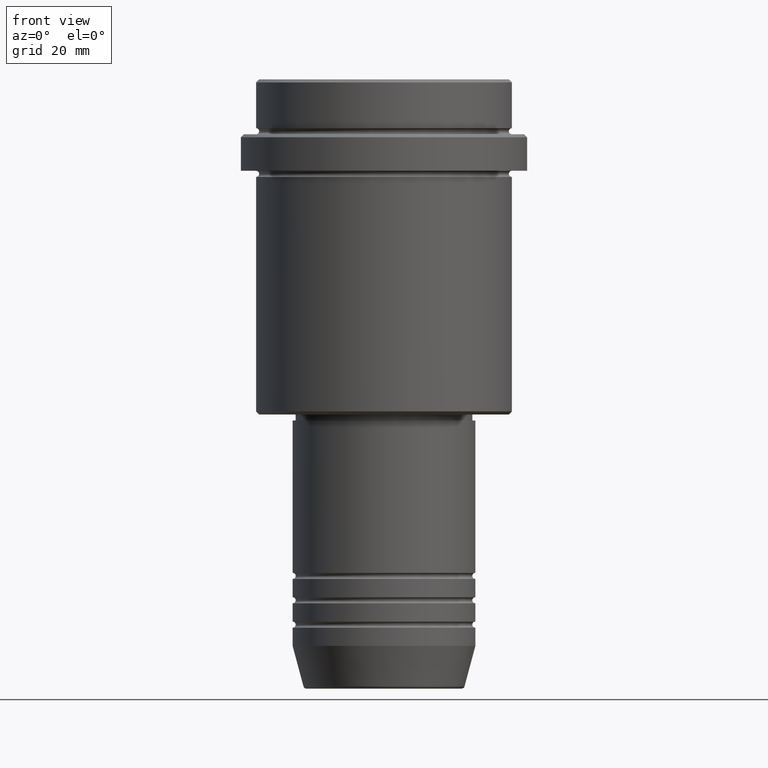
[diagram: clean part render]
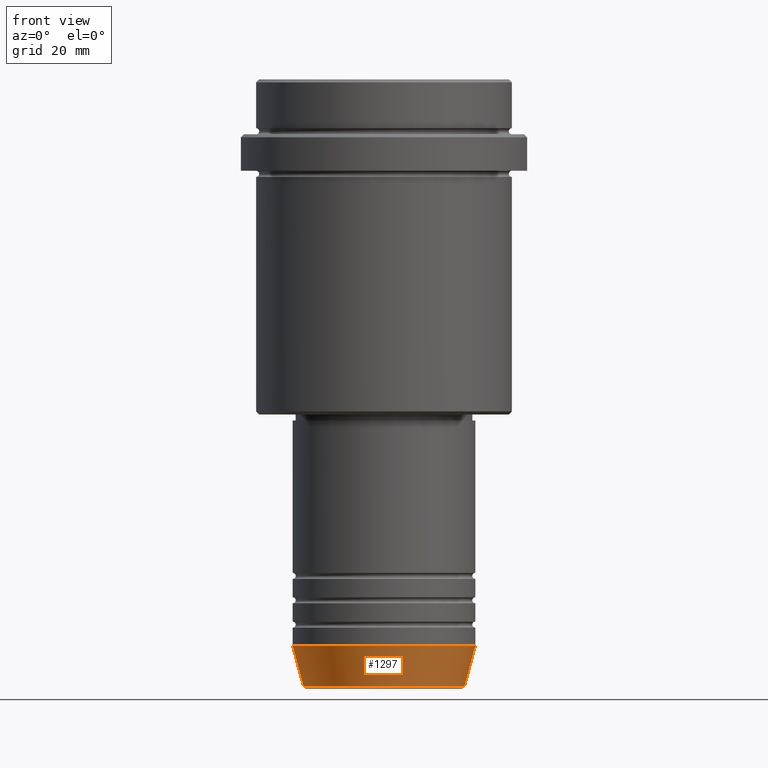
[diagram: same view with one face highlighted and labeled with its STEP entity id]
A machine part, front view. The second image highlights one B-rep face of the part: STEP entity #1297.
In plain terms, the highlighted conical surface has half-angle 15 deg.
Its self-contained STEP definition (entity closure, byte-faithful):
#123 = EDGE_CURVE ( 'NONE', #1089, #795, #463, .T. ) ;
#129 = VECTOR ( 'NONE', #1216, 1000.000000000000000 ) ;
#137 = CARTESIAN_POINT ( 'NONE',  ( 15.00000000000000000, 0.000000000000000000, -93.00000000000000000 ) ) ;
#147 = VERTEX_POINT ( 'NONE', #568 ) ;
#186 = ORIENTED_EDGE ( 'NONE', *, *, #1280, .F. ) ;
#231 = ORIENTED_EDGE ( 'NONE', *, *, #931, .T. ) ;
#258 = CARTESIAN_POINT ( 'NONE',  ( -15.00000000000000000, 1.836970198721029589E-15, -93.00000000000000000 ) ) ;
#362 = EDGE_CURVE ( 'NONE', #1278, #147, #1322, .T. ) ;
#380 = CARTESIAN_POINT ( 'NONE',  ( 0.000000000000000000, 0.000000000000000000, -93.00000000000000000 ) ) ;
#392 = DIRECTION ( 'NONE',  ( -0.000000000000000000, -0.000000000000000000, 1.000000000000000000 ) ) ;
#460 = CIRCLE ( 'NONE', #1376, 13.22365507213718594 ) ;
#463 = LINE ( 'NONE', #1212, #740 ) ;
#500 = DIRECTION ( 'NONE',  ( 1.000000000000000000, 0.000000000000000000, 0.000000000000000000 ) ) ;
#537 = CIRCLE ( 'NONE', #1048, 15.00000000000000000 ) ;
#568 = CARTESIAN_POINT ( 'NONE',  ( 15.00000000000000000, 0.000000000000000000, -93.00000000000000000 ) ) ;
#572 = CARTESIAN_POINT ( 'NONE',  ( -13.22365507213718594, 1.728200442216587992E-15, -99.62940952255125637 ) ) ;
#582 = CARTESIAN_POINT ( 'NONE',  ( 13.22365507213718594, 0.000000000000000000, -99.62940952255125637 ) ) ;
#605 = AXIS2_PLACEMENT_3D ( 'NONE', #804, #704, #685 ) ;
#685 = DIRECTION ( 'NONE',  ( 1.000000000000000000, 0.000000000000000000, 0.000000000000000000 ) ) ;
#701 = EDGE_LOOP ( 'NONE', ( #1272, #231, #1132, #186 ) ) ;
#704 = DIRECTION ( 'NONE',  ( -0.000000000000000000, -0.000000000000000000, 1.000000000000000000 ) ) ;
#740 = VECTOR ( 'NONE', #765, 1000.000000000000000 ) ;
#765 = DIRECTION ( 'NONE',  ( -0.2588190451025213501, 3.169619151431772337E-17, 0.9659258262890680902 ) ) ;
#795 = VERTEX_POINT ( 'NONE', #258 ) ;
#804 = CARTESIAN_POINT ( 'NONE',  ( 0.000000000000000000, 0.000000000000000000, -93.00000000000000000 ) ) ;
#816 = CARTESIAN_POINT ( 'NONE',  ( 0.000000000000000000, 0.000000000000000000, -99.62940952255125637 ) ) ;
#912 = DIRECTION ( 'NONE',  ( -0.000000000000000000, -0.000000000000000000, 1.000000000000000000 ) ) ;
#931 = EDGE_CURVE ( 'NONE', #1089, #1278, #460, .T. ) ;
#1048 = AXIS2_PLACEMENT_3D ( 'NONE', #380, #912, #1338 ) ;
#1089 = VERTEX_POINT ( 'NONE', #572 ) ;
#1132 = ORIENTED_EDGE ( 'NONE', *, *, #362, .T. ) ;
#1212 = CARTESIAN_POINT ( 'NONE',  ( -15.00000000000000000, 1.836970198721029589E-15, -93.00000000000000000 ) ) ;
#1216 = DIRECTION ( 'NONE',  ( 0.2588190451025213501, 0.000000000000000000, 0.9659258262890680902 ) ) ;
#1272 = ORIENTED_EDGE ( 'NONE', *, *, #123, .F. ) ;
#1278 = VERTEX_POINT ( 'NONE', #582 ) ;
#1280 = EDGE_CURVE ( 'NONE', #795, #147, #537, .T. ) ;
#1297 = ADVANCED_FACE ( 'NONE', ( #1348 ), #1402, .T. ) ;
#1322 = LINE ( 'NONE', #137, #129 ) ;
#1338 = DIRECTION ( 'NONE',  ( 1.000000000000000000, 0.000000000000000000, 0.000000000000000000 ) ) ;
#1348 = FACE_OUTER_BOUND ( 'NONE', #701, .T. ) ;
#1376 = AXIS2_PLACEMENT_3D ( 'NONE', #816, #392, #500 ) ;
#1402 = CONICAL_SURFACE ( 'NONE', #605, 15.00000000000000000, 0.2617993877991500740 ) ;